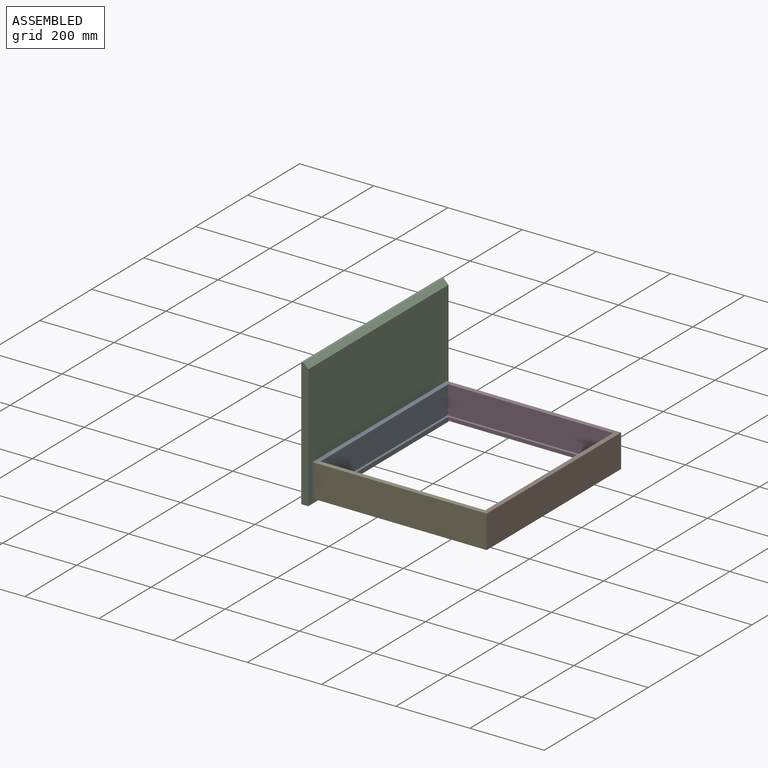
[diagram: assembled view]
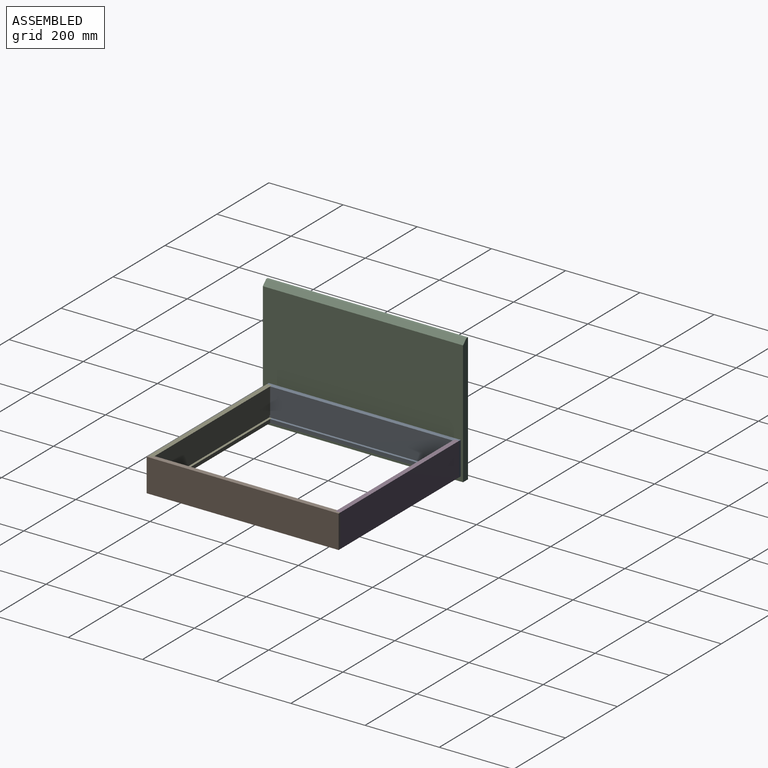
[diagram: assembled view, second angle]
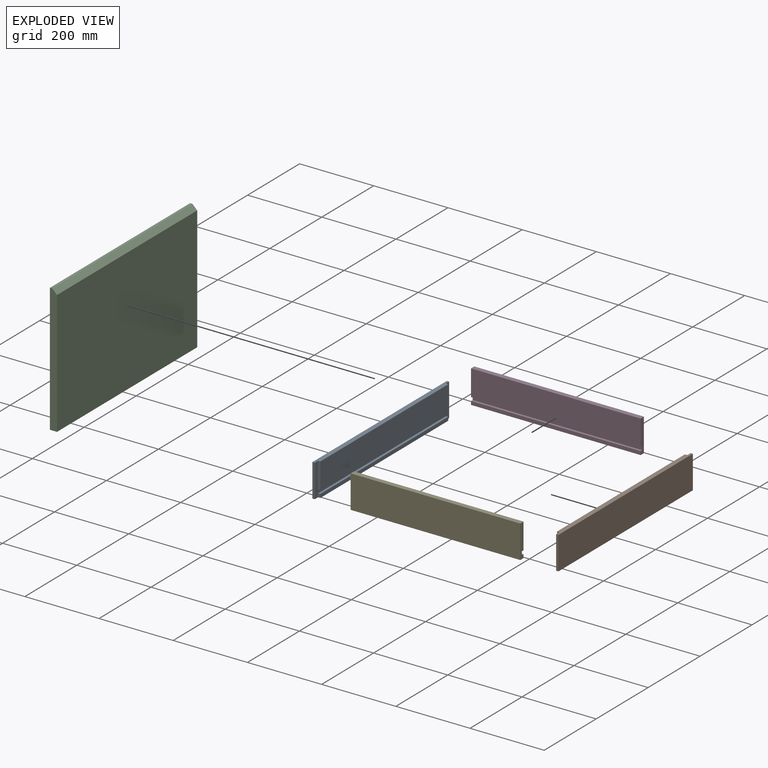
[diagram: exploded view]
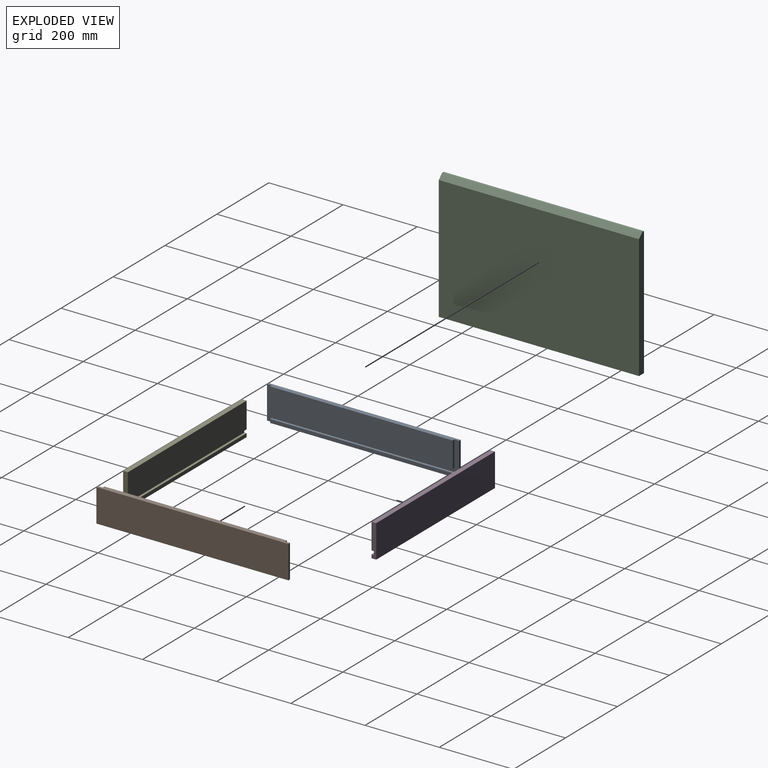
[diagram: exploded view, second angle]
ASSEMBLY  parts=5 mates=4
PART A: 14 faces, bbox 12.7x517.5x88.9 mm
  f0: plane 492.13x9.53mm, normal (-1,0,0), area 4687.5mm2, adj f6,f9,f10,f12
  f1: plane 69.85x6.35mm, normal (0,-1,0), area 443.5mm2, adj f3,f4,f11,f13
  f2: plane 69.85x6.35mm, normal (0,1,0), area 443.5mm2, adj f3,f4,f11,f13
  f3: plane 517.53x12.7mm, normal (0,0,1), area 6411.3mm2, adj f1,f2,f4,f5,f7,f8,f11
  f4: plane 492.13x69.85mm, normal (-1,0,0), area 34374.9mm2, adj f1,f2,f3,f13
  f5: plane 88.9x6.35mm, normal (0,-1,0), area 564.5mm2, adj f3,f6,f8,f11
  f6: plane 517.53x12.7mm, normal (0,0,-1), area 6411.3mm2, adj f0,f5,f7,f8,f9,f10,f11
  f7: plane 88.9x6.35mm, normal (0,1,0), area 564.5mm2, adj f3,f6,f8,f11
  f8: plane 517.53x88.9mm, normal (1,0,0), area 46008mm2, adj f3,f5,f6,f7
  f9: plane 9.53x6.35mm, normal (0,-1,0), area 60.5mm2, adj f0,f6,f11,f12
  f10: plane 9.53x6.35mm, normal (0,1,0), area 60.5mm2, adj f0,f6,f11,f12
  f11: plane 517.53x88.9mm, normal (-1,0,0), area 6945.6mm2, adj f1,f2,f3,f5,f6,f7,f9,f10
  f12: plane 492.13x6.35mm, normal (0,0,1), area 3125mm2, adj f0,f9,f10,f11
  f13: plane 492.13x6.35mm, normal (0,0,-1), area 3125mm2, adj f1,f2,f4,f11
PART B: same geometry as A
PART C: 7 faces, bbox 539.8x19.1x346.1 mm
  f0: plane 346.08x19.05mm, normal (-1,0,0), area 6512.1mm2, adj f1,f3,f4,f5,f6
  f1: plane 539.75x19.05mm, normal (0,0,-1), area 10282.2mm2, adj f0,f2,f4,f5
  f2: plane 346.08x19.05mm, normal (1,0,0), area 6512.1mm2, adj f1,f3,f4,f5,f6
  f3: plane 539.75x6.35mm, normal (0,0,1), area 3427.4mm2, adj f0,f2,f4,f6
  f4: plane 539.75x346.08mm, normal (0,-1,0), area 186794mm2, adj f0,f1,f2,f3
  f5: plane 539.75x333.38mm, normal (0,1,0), area 179939.2mm2, adj f0,f1,f2,f6
  f6: plane 539.75x12.7mm, normal (0,0.71,0.71), area 9694.2mm2, adj f0,f2,f3,f5
PART D: 10 faces, bbox 12.7x457.2x88.9 mm
  f0: plane 457.2x9.53mm, normal (-1,0,0), area 4354.8mm2, adj f1,f2,f3,f8
  f1: plane 88.9x12.7mm, normal (0,-1,0), area 1068.5mm2, adj f0,f2,f4,f5,f6,f7,f8,f9
  f2: plane 457.2x12.7mm, normal (0,0,-1), area 5806.4mm2, adj f0,f1,f3,f5
  f3: plane 88.9x12.7mm, normal (0,1,0), area 1068.5mm2, adj f0,f2,f4,f5,f6,f7,f8,f9
  f4: plane 457.2x12.7mm, normal (0,0,1), area 5806.4mm2, adj f1,f3,f5,f6
  f5: plane 457.2x88.9mm, normal (1,0,0), area 40645.1mm2, adj f1,f2,f3,f4
  f6: plane 457.2x69.85mm, normal (-1,0,0), area 31935.4mm2, adj f1,f3,f4,f7
  f7: plane 457.2x6.35mm, normal (0,0,-1), area 2903.2mm2, adj f1,f3,f6,f9
  f8: plane 457.2x6.35mm, normal (0,0,1), area 2903.2mm2, adj f0,f1,f3,f9
  f9: plane 457.2x9.53mm, normal (-1,0,0), area 4354.8mm2, adj f1,f3,f7,f8
PART E: same geometry as D
PLACE A rot(axis=(0,0,-1),180deg) t=(-330.3,257.51,182.53)mm
PLACE B t=(114.2,-260.02,182.53)mm
PLACE C rot(axis=(0,0,-1),90deg) t=(-343,263.86,169.83)mm
PLACE D rot(axis=(0,0,1),90deg) t=(120.55,244.81,182.53)mm
PLACE E rot(axis=(0,0,-1),90deg) t=(-336.65,-247.32,182.53)mm
MATE fastened B.f11 <-> D.f1  axis (-1,0,0) through (120.55,257.51,271.43)mm
MATE fastened A.f11 <-> D.f3  axis (1,0,0) through (-336.65,257.51,271.43)mm
MATE fastened E.f3 <-> B.f11  axis (1,0,0) through (120.55,-260.02,271.43)mm
MATE fastened C.f5 <-> A.f8  axis (1,0,0) through (-343,-6.02,169.83)mm
